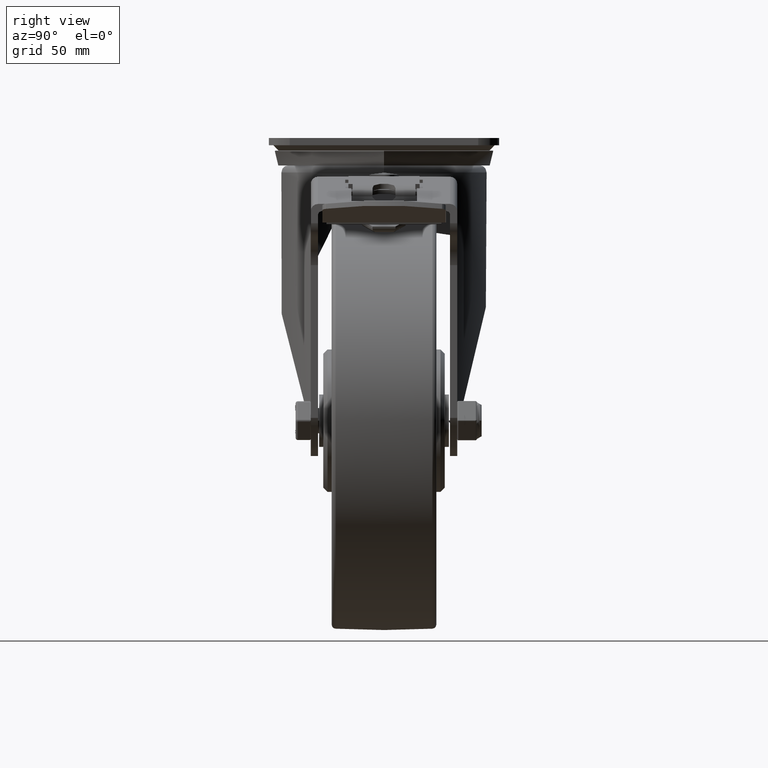
[diagram: clean part render]
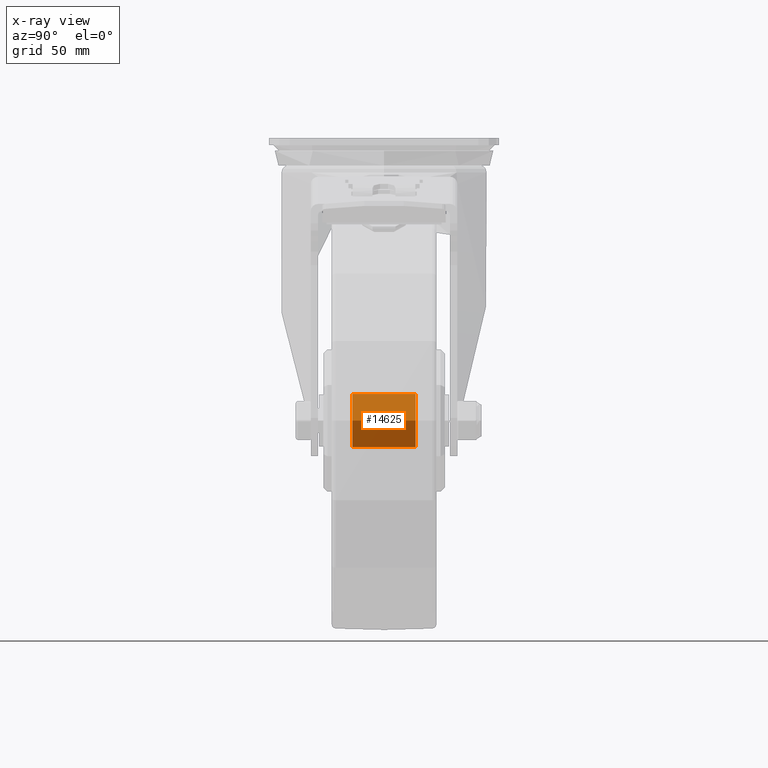
[diagram: x-ray — body ghosted, one internal face saturated and labeled with its STEP entity id]
A machine part, right view, then the same camera in x-ray: the body is ghosted and one INTERNAL B-rep face — a face not visible from any outside direction — is saturated and labeled: STEP entity #14625.
In plain terms, the highlighted cylindrical surface (bore or boss wall) has radius 12.7 mm, axis along (0, -1, -0).
Its self-contained STEP definition (entity closure, byte-faithful):
#1958=FACE_OUTER_BOUND('',#2840,.T.);
#2840=EDGE_LOOP('',(#10170,#10171,#10172,#10173));
#3841=LINE('',#21011,#4904);
#4904=VECTOR('',#17263,12.7);
#5994=CIRCLE('',#15811,12.7);
#5995=CIRCLE('',#15812,12.7);
#6506=VERTEX_POINT('',#21008);
#6507=VERTEX_POINT('',#21010);
#7955=EDGE_CURVE('',#6506,#6506,#5994,.T.);
#7956=EDGE_CURVE('',#6506,#6507,#3841,.T.);
#7957=EDGE_CURVE('',#6507,#6507,#5995,.T.);
#10170=ORIENTED_EDGE('',*,*,#7955,.T.);
#10171=ORIENTED_EDGE('',*,*,#7956,.T.);
#10172=ORIENTED_EDGE('',*,*,#7957,.T.);
#10173=ORIENTED_EDGE('',*,*,#7956,.F.);
#14398=CYLINDRICAL_SURFACE('',#15810,12.7);
#14625=ADVANCED_FACE('',(#1958),#14398,.T.);
#15810=AXIS2_PLACEMENT_3D('',#21007,#17259,#17260);
#15811=AXIS2_PLACEMENT_3D('',#21009,#17261,#17262);
#15812=AXIS2_PLACEMENT_3D('',#21012,#17264,#17265);
#17259=DIRECTION('center_axis',(0.,-1.,-3.49148336110938E-15));
#17260=DIRECTION('ref_axis',(1.,0.,0.));
#17261=DIRECTION('center_axis',(0.,1.,3.49148336110938E-15));
#17262=DIRECTION('ref_axis',(1.,0.,0.));
#17263=DIRECTION('',(0.,1.,3.49148336110938E-15));
#17264=DIRECTION('center_axis',(0.,-1.,-3.49148336110938E-15));
#17265=DIRECTION('ref_axis',(1.,0.,0.));
#21007=CARTESIAN_POINT('Origin',(0.,0.,0.));
#21008=CARTESIAN_POINT('',(-12.7,-15.125,-5.12533844018623E-14));
#21009=CARTESIAN_POINT('Origin',(0.,-15.125,-5.28086858367794E-14));
#21010=CARTESIAN_POINT('',(-12.7,15.125,5.43639872716965E-14));
#21011=CARTESIAN_POINT('',(-12.7,5.43030908152273E-30,-1.55530143491714E-15));
#21012=CARTESIAN_POINT('Origin',(0.,15.125,5.28086858367794E-14));